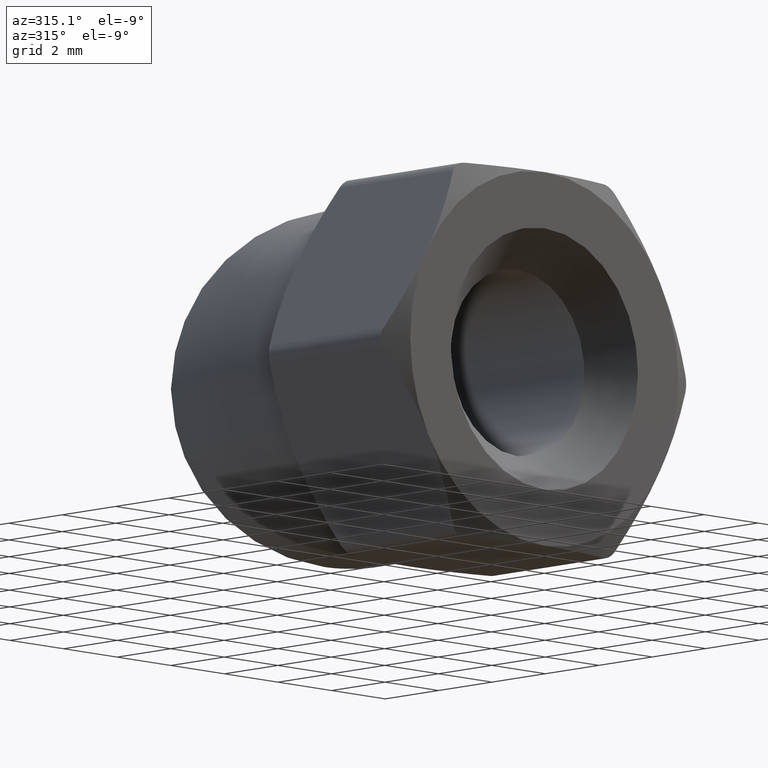
[diagram: clean part render]
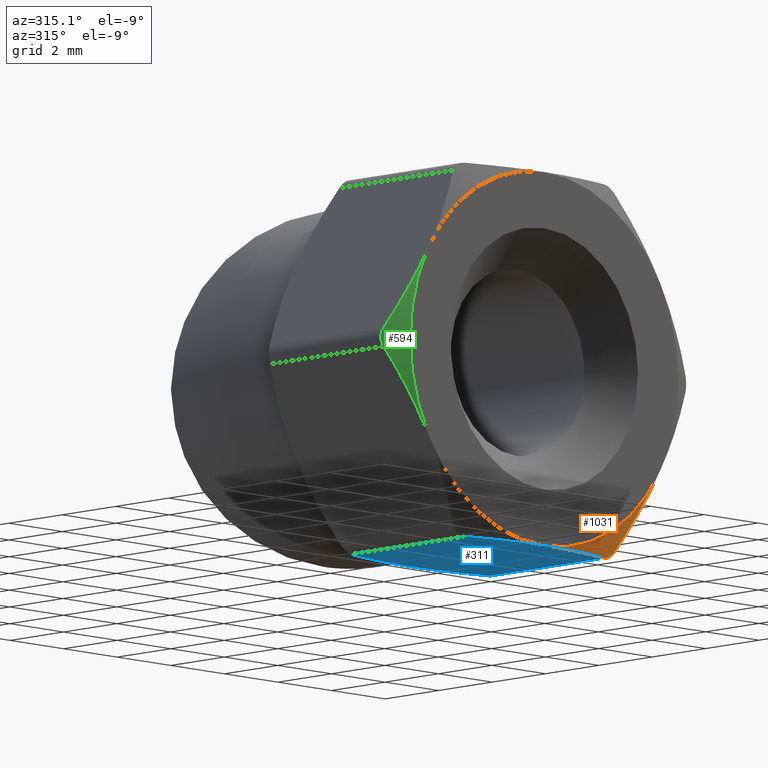
[diagram: same view with three faces highlighted in distinct colors, each labeled with its STEP entity id]
A machine part, auxiliary view with three faces highlighted in distinct colors.
Their STEP definitions:

[orange] entity #1031 — the highlighted conical surface has half-angle 60 deg.
#7 = CARTESIAN_POINT ( 'NONE',  ( 0.4379327334247484200, -9.910285482875310000E-016, -4.999999999999999100 ) ) ;
#11 = VERTEX_POINT ( 'NONE', #628 ) ;
#14 = EDGE_CURVE ( 'NONE', #129, #928, #1270, .T. ) ;
#47 = CARTESIAN_POINT ( 'NONE',  ( 3.888340324046019700, -4.111384739255980400E-015, -3.265197001633459300 ) ) ;
#73 = ORIENTED_EDGE ( 'NONE', *, *, #377, .T. ) ;
#129 = VERTEX_POINT ( 'NONE', #737 ) ;
#145 = ORIENTED_EDGE ( 'NONE', *, *, #14, .T. ) ;
#172 = CARTESIAN_POINT ( 'NONE',  ( 2.988064056856177200, 0.3893592352059666600, -4.824521237254662000 ) ) ;
#178 = CARTESIAN_POINT ( 'NONE',  ( 2.684097962339600400, 0.3893517915824357700, -4.999999999999999100 ) ) ;
#189 = EDGE_CURVE ( 'NONE', #11, #129, #958, .T. ) ;
#211 = EDGE_CURVE ( 'NONE', #544, #928, #212, .T. ) ;
#212 = CIRCLE ( 'NONE', #297, 5.000000000000000900 ) ;
#215 = CARTESIAN_POINT ( 'NONE',  ( 4.330127018922192800, 0.0000000000000000000, -2.500000000000002700 ) ) ;
#272 = CARTESIAN_POINT ( 'NONE',  ( 0.0000000000000000000, 0.0000000000000000000, 0.0000000000000000000 ) ) ;
#289 = CARTESIAN_POINT ( 'NONE',  ( 2.598076211353313800, 0.3664522033757202600, -4.999999999999999100 ) ) ;
#292 = CARTESIAN_POINT ( 'NONE',  ( 0.8816963457451865200, 0.03449202256963437900, -4.999999999999999100 ) ) ;
#297 = AXIS2_PLACEMENT_3D ( 'NONE', #272, #1269, #1265 ) ;
#316 = CARTESIAN_POINT ( 'NONE',  ( 0.0000000000000000000, 0.0000000000000000000, -5.000000000000000900 ) ) ;
#324 = CARTESIAN_POINT ( 'NONE',  ( 3.031088913245470400, 0.3664522033757524100, -4.750000000000108400 ) ) ;
#333 = CARTESIAN_POINT ( 'NONE',  ( 3.456602734154969900, 0.1399027280774072200, -4.012988442862091900 ) ) ;
#377 = EDGE_CURVE ( 'NONE', #544, #11, #923, .T. ) ;
#481 = DIRECTION ( 'NONE',  ( 0.0000000000000000000, 0.0000000000000000000, -1.000000000000000000 ) ) ;
#521 = AXIS2_PLACEMENT_3D ( 'NONE', #583, #777, #481 ) ;
#544 = VERTEX_POINT ( 'NONE', #316 ) ;
#552 = CARTESIAN_POINT ( 'NONE',  ( 2.598076211353313800, 0.3664522033757202600, -4.999999999999999100 ) ) ;
#578 = CARTESIAN_POINT ( 'NONE',  ( 1.750304367260592900, 0.1621372704867232700, -4.999999999999997300 ) ) ;
#583 = CARTESIAN_POINT ( 'NONE',  ( 0.0000000000000000000, 0.4465819873851976100, 0.0000000000000000000 ) ) ;
#628 = CARTESIAN_POINT ( 'NONE',  ( 2.598076211353313800, 0.3664522033757202600, -4.999999999999999100 ) ) ;
#629 = FACE_OUTER_BOUND ( 'NONE', #940, .T. ) ;
#655 = CONICAL_SURFACE ( 'NONE', #521, 5.773502691896257300, 1.047197551196603600 ) ;
#667 = CARTESIAN_POINT ( 'NONE',  ( 2.771465113497938200, 0.4018833234856941100, -4.977155422018797500 ) ) ;
#737 = CARTESIAN_POINT ( 'NONE',  ( 3.031088913245470400, 0.3664522033757524100, -4.750000000000108400 ) ) ;
#754 = CARTESIAN_POINT ( 'NONE',  ( 0.0000000000000000000, 0.0000000000000000000, -5.000000000000000900 ) ) ;
#777 = DIRECTION ( 'NONE',  ( -0.0000000000000000000, 1.000000000000000000, -0.0000000000000000000 ) ) ;
#778 = ORIENTED_EDGE ( 'NONE', *, *, #189, .T. ) ;
#923 = B_SPLINE_CURVE_WITH_KNOTS ( 'NONE', 3,
 ( #754, #7, #292, #578, #1088, #289 ),
 .UNSPECIFIED., .F., .F.,
 ( 4, 2, 4 ),
 ( 0.008070708573309194600, 0.009381581822669529700, 0.01069245507202986500 ),
 .UNSPECIFIED. ) ;
#928 = VERTEX_POINT ( 'NONE', #215 ) ;
#940 = EDGE_LOOP ( 'NONE', ( #73, #778, #145, #1036 ) ) ;
#958 = B_SPLINE_CURVE_WITH_KNOTS ( 'NONE', 3,
 ( #552, #178, #667, #1274, #172, #961 ),
 .UNSPECIFIED., .F., .F.,
 ( 4, 2, 4 ),
 ( 0.0000000000000000000, 0.0002635016616916906700, 0.0005270033233833813300 ),
 .UNSPECIFIED. ) ;
#961 = CARTESIAN_POINT ( 'NONE',  ( 3.031088913245470400, 0.3664522033757524100, -4.750000000000108400 ) ) ;
#1031 = ADVANCED_FACE ( 'NONE', ( #629 ), #655, .T. ) ;
#1036 = ORIENTED_EDGE ( 'NONE', *, *, #211, .F. ) ;
#1088 = CARTESIAN_POINT ( 'NONE',  ( 2.176897922532171000, 0.2543316145126675600, -4.999999999999999100 ) ) ;
#1148 = CARTESIAN_POINT ( 'NONE',  ( 4.330127018922192800, 0.0000000000000000000, -2.500000000000002700 ) ) ;
#1265 = DIRECTION ( 'NONE',  ( 0.0000000000000000000, 0.0000000000000000000, -1.000000000000000000 ) ) ;
#1269 = DIRECTION ( 'NONE',  ( 0.0000000000000000000, -1.000000000000000000, 0.0000000000000000000 ) ) ;
#1270 = B_SPLINE_CURVE_WITH_KNOTS ( 'NONE', 3,
 ( #324, #333, #47, #1148 ),
 .UNSPECIFIED., .F., .F.,
 ( 4, 4 ),
 ( 0.0002973740778412419000, 0.002921158011986710300 ),
 .UNSPECIFIED. ) ;
#1274 = CARTESIAN_POINT ( 'NONE',  ( 2.923932722703210400, 0.4019640539834248800, -4.889305204383051200 ) ) ;

[blue] entity #311 — the highlighted planar face has unit normal (0, -0, 1).
#7 = CARTESIAN_POINT ( 'NONE',  ( 0.4379327334247484200, -9.910285482875310000E-016, -4.999999999999999100 ) ) ;
#11 = VERTEX_POINT ( 'NONE', #628 ) ;
#61 = VECTOR ( 'NONE', #403, 1000.000000000000000 ) ;
#85 = EDGE_CURVE ( 'NONE', #954, #886, #728, .T. ) ;
#108 = ORIENTED_EDGE ( 'NONE', *, *, #534, .T. ) ;
#201 = CARTESIAN_POINT ( 'NONE',  ( -0.4380187123955633900, -9.012430558785755600E-016, -4.999999999999999100 ) ) ;
#236 = FACE_OUTER_BOUND ( 'NONE', #532, .T. ) ;
#279 = CARTESIAN_POINT ( 'NONE',  ( 2.598076211353312900, 4.633547796624279500, -4.999999999999999100 ) ) ;
#289 = CARTESIAN_POINT ( 'NONE',  ( 2.598076211353313800, 0.3664522033757202600, -4.999999999999999100 ) ) ;
#292 = CARTESIAN_POINT ( 'NONE',  ( 0.8816963457451865200, 0.03449202256963437900, -4.999999999999999100 ) ) ;
#311 = ADVANCED_FACE ( 'NONE', ( #236 ), #853, .F. ) ;
#316 = CARTESIAN_POINT ( 'NONE',  ( 0.0000000000000000000, 0.0000000000000000000, -5.000000000000000900 ) ) ;
#340 = EDGE_CURVE ( 'NONE', #954, #544, #1290, .T. ) ;
#360 = DIRECTION ( 'NONE',  ( 0.0000000000000000000, -0.0000000000000000000, 1.000000000000000000 ) ) ;
#375 = CARTESIAN_POINT ( 'NONE',  ( -1.739999404489200000, 0.1602084749622582300, -4.999999999999999100 ) ) ;
#377 = EDGE_CURVE ( 'NONE', #544, #11, #923, .T. ) ;
#393 = CARTESIAN_POINT ( 'NONE',  ( -2.598076211353432800, 4.633547796624261700, -4.999999999999999100 ) ) ;
#403 = DIRECTION ( 'NONE',  ( 0.0000000000000000000, -1.000000000000000000, 0.0000000000000000000 ) ) ;
#413 = VERTEX_POINT ( 'NONE', #1284 ) ;
#427 = CARTESIAN_POINT ( 'NONE',  ( 0.0000000000000000000, 5.000000000000000000, -5.000000000000000900 ) ) ;
#446 = ORIENTED_EDGE ( 'NONE', *, *, #802, .F. ) ;
#463 = CARTESIAN_POINT ( 'NONE',  ( 0.8816963457451860700, 4.965507977430364800, -4.999999999999997300 ) ) ;
#479 = CARTESIAN_POINT ( 'NONE',  ( -1.739999404489200900, 4.839791525037741200, -4.999999999999997300 ) ) ;
#500 = LINE ( 'NONE', #1010, #61 ) ;
#532 = EDGE_LOOP ( 'NONE', ( #872, #564, #446, #607, #108, #1095 ) ) ;
#534 = EDGE_CURVE ( 'NONE', #413, #11, #500, .T. ) ;
#544 = VERTEX_POINT ( 'NONE', #316 ) ;
#556 = CARTESIAN_POINT ( 'NONE',  ( -2.173161805207218100, 4.746662965895822600, -4.999999999999999100 ) ) ;
#564 = ORIENTED_EDGE ( 'NONE', *, *, #85, .T. ) ;
#578 = CARTESIAN_POINT ( 'NONE',  ( 1.750304367260592900, 0.1621372704867232700, -4.999999999999997300 ) ) ;
#591 = CARTESIAN_POINT ( 'NONE',  ( -2.598076211353432800, 0.3664522033757390300, -4.999999999999999100 ) ) ;
#607 = ORIENTED_EDGE ( 'NONE', *, *, #1247, .F. ) ;
#628 = CARTESIAN_POINT ( 'NONE',  ( 2.598076211353313800, 0.3664522033757202600, -4.999999999999999100 ) ) ;
#673 = CARTESIAN_POINT ( 'NONE',  ( -2.173161805207217200, 0.2533370341041785200, -4.999999999999999100 ) ) ;
#728 = LINE ( 'NONE', #735, #869 ) ;
#735 = CARTESIAN_POINT ( 'NONE',  ( -2.598076211353317300, 5.000000000000000000, -4.999999999999999100 ) ) ;
#754 = CARTESIAN_POINT ( 'NONE',  ( 0.0000000000000000000, 0.0000000000000000000, -5.000000000000000900 ) ) ;
#766 = CARTESIAN_POINT ( 'NONE',  ( 0.4379327334247479200, 5.000000000000000000, -4.999999999999999100 ) ) ;
#774 = CARTESIAN_POINT ( 'NONE',  ( 1.750304367260591800, 4.837862729513277700, -4.999999999999999100 ) ) ;
#786 = CARTESIAN_POINT ( 'NONE',  ( -2.598076211353432800, 0.3664522033757390300, -4.999999999999999100 ) ) ;
#791 = CARTESIAN_POINT ( 'NONE',  ( -0.8734965585025232800, 0.03371041895708262700, -4.999999999999997300 ) ) ;
#802 = EDGE_CURVE ( 'NONE', #1176, #886, #1175, .T. ) ;
#853 = PLANE ( 'NONE',  #1294 ) ;
#867 = CARTESIAN_POINT ( 'NONE',  ( 2.176897922532170500, 4.745668385487332100, -4.999999999999999100 ) ) ;
#869 = VECTOR ( 'NONE', #1139, 1000.000000000000000 ) ;
#872 = ORIENTED_EDGE ( 'NONE', *, *, #340, .F. ) ;
#876 = CARTESIAN_POINT ( 'NONE',  ( 0.0000000000000000000, 5.000000000000000000, -5.000000000000000900 ) ) ;
#881 = CARTESIAN_POINT ( 'NONE',  ( -0.4380187123955634500, 5.000000000000000000, -4.999999999999999100 ) ) ;
#886 = VERTEX_POINT ( 'NONE', #393 ) ;
#923 = B_SPLINE_CURVE_WITH_KNOTS ( 'NONE', 3,
 ( #754, #7, #292, #578, #1088, #289 ),
 .UNSPECIFIED., .F., .F.,
 ( 4, 2, 4 ),
 ( 0.008070708573309194600, 0.009381581822669529700, 0.01069245507202986500 ),
 .UNSPECIFIED. ) ;
#954 = VERTEX_POINT ( 'NONE', #591 ) ;
#981 = B_SPLINE_CURVE_WITH_KNOTS ( 'NONE', 3,
 ( #279, #867, #774, #463, #766, #1271 ),
 .UNSPECIFIED., .F., .F.,
 ( 4, 2, 4 ),
 ( 0.002415649517230676400, 0.003723171471378670000, 0.005030693425526663500 ),
 .UNSPECIFIED. ) ;
#1010 = CARTESIAN_POINT ( 'NONE',  ( 2.598076211353313800, 5.000000000000000000, -4.999999999999999100 ) ) ;
#1069 = CARTESIAN_POINT ( 'NONE',  ( 2.886751345948126900, 5.000000000000000000, -4.999999999999999100 ) ) ;
#1088 = CARTESIAN_POINT ( 'NONE',  ( 2.176897922532171000, 0.2543316145126675600, -4.999999999999999100 ) ) ;
#1090 = CARTESIAN_POINT ( 'NONE',  ( -0.8734965585025242800, 4.966289581042918400, -4.999999999999999100 ) ) ;
#1095 = ORIENTED_EDGE ( 'NONE', *, *, #377, .F. ) ;
#1139 = DIRECTION ( 'NONE',  ( -0.0000000000000000000, 1.000000000000000000, -0.0000000000000000000 ) ) ;
#1161 = DIRECTION ( 'NONE',  ( 1.000000000000000000, 0.0000000000000000000, -0.0000000000000000000 ) ) ;
#1175 = B_SPLINE_CURVE_WITH_KNOTS ( 'NONE', 3,
 ( #876, #881, #1090, #479, #556, #1267 ),
 .UNSPECIFIED., .F., .F.,
 ( 4, 2, 4 ),
 ( 0.005030693425526663500, 0.006338472084376895600, 0.007646250743227126800 ),
 .UNSPECIFIED. ) ;
#1176 = VERTEX_POINT ( 'NONE', #427 ) ;
#1247 = EDGE_CURVE ( 'NONE', #413, #1176, #981, .T. ) ;
#1267 = CARTESIAN_POINT ( 'NONE',  ( -2.598076211353432800, 4.633547796624261700, -4.999999999999999100 ) ) ;
#1271 = CARTESIAN_POINT ( 'NONE',  ( 0.0000000000000000000, 5.000000000000000000, -5.000000000000000900 ) ) ;
#1284 = CARTESIAN_POINT ( 'NONE',  ( 2.598076211353312900, 4.633547796624279500, -4.999999999999999100 ) ) ;
#1290 = B_SPLINE_CURVE_WITH_KNOTS ( 'NONE', 3,
 ( #786, #673, #375, #791, #201, #1291 ),
 .UNSPECIFIED., .F., .F.,
 ( 4, 2, 4 ),
 ( 0.005448447349270024700, 0.006759577961289609700, 0.008070708573309194600 ),
 .UNSPECIFIED. ) ;
#1291 = CARTESIAN_POINT ( 'NONE',  ( 0.0000000000000000000, 0.0000000000000000000, -5.000000000000000900 ) ) ;
#1294 = AXIS2_PLACEMENT_3D ( 'NONE', #1069, #360, #1161 ) ;

[green] entity #594 — the highlighted conical surface has half-angle 60 deg.
#74 = CARTESIAN_POINT ( 'NONE',  ( -4.330127018922194500, 0.0000000000000000000, 2.500000000000000000 ) ) ;
#84 = CARTESIAN_POINT ( 'NONE',  ( -5.629165124598850800, 0.3664522033757208800, 0.2499999999999990300 ) ) ;
#116 = CARTESIAN_POINT ( 'NONE',  ( -5.629165124598850800, 0.3664522033757208800, 0.2499999999999990300 ) ) ;
#200 = CIRCLE ( 'NONE', #993, 5.000000000000000900 ) ;
#209 = CARTESIAN_POINT ( 'NONE',  ( -5.696075590800707500, 0.4018833234856946100, 0.08841851701785871700 ) ) ;
#266 = CARTESIAN_POINT ( 'NONE',  ( -4.770156486568006400, 0.03439641625941002000, 1.737846605209964600 ) ) ;
#302 = B_SPLINE_CURVE_WITH_KNOTS ( 'NONE', 3,
 ( #1102, #486, #915, #492 ),
 .UNSPECIFIED., .F., .F.,
 ( 4, 4 ),
 ( 0.0002973740778412421200, 0.002921158011986709900 ),
 .UNSPECIFIED. ) ;
#310 = CARTESIAN_POINT ( 'NONE',  ( -5.696228875202796100, 0.4019640539834253800, -0.08754741462605814000 ) ) ;
#312 = EDGE_CURVE ( 'NONE', #424, #943, #528, .T. ) ;
#345 = VERTEX_POINT ( 'NONE', #371 ) ;
#371 = CARTESIAN_POINT ( 'NONE',  ( -4.330127018922195400, 0.0000000000000000000, -2.500000000000000000 ) ) ;
#420 = DIRECTION ( 'NONE',  ( 0.0000000000000000000, 1.000000000000000000, 0.0000000000000000000 ) ) ;
#424 = VERTEX_POINT ( 'NONE', #685 ) ;
#480 = CONICAL_SURFACE ( 'NONE', #1145, 5.773502691896257300, 1.047197551196603600 ) ;
#486 = CARTESIAN_POINT ( 'NONE',  ( -5.203651303689413900, 0.1399027280774077500, -0.9870115571379083400 ) ) ;
#492 = CARTESIAN_POINT ( 'NONE',  ( -4.330127018922195400, 0.0000000000000000000, -2.500000000000000000 ) ) ;
#496 = CARTESIAN_POINT ( 'NONE',  ( -5.672176000091992500, 0.3893517915824369300, 0.1755029783678558600 ) ) ;
#528 = B_SPLINE_CURVE_WITH_KNOTS ( 'NONE', 3,
 ( #74, #974, #266, #1059, #557, #84 ),
 .UNSPECIFIED., .F., .F.,
 ( 4, 2, 4 ),
 ( 0.002921158011986714200, 0.004227809343379592000, 0.005534460674772470300 ),
 .UNSPECIFIED. ) ;
#548 = EDGE_CURVE ( 'NONE', #829, #345, #302, .T. ) ;
#557 = CARTESIAN_POINT ( 'NONE',  ( -5.416897631432969500, 0.2534380382968114400, 0.6176580829585843800 ) ) ;
#594 = ADVANCED_FACE ( 'NONE', ( #1086 ), #480, .T. ) ;
#595 = DIRECTION ( 'NONE',  ( -0.0000000000000000000, 1.000000000000000000, -0.0000000000000000000 ) ) ;
#600 = DIRECTION ( 'NONE',  ( 0.0000000000000000000, 0.0000000000000000000, 1.000000000000000000 ) ) ;
#626 = ORIENTED_EDGE ( 'NONE', *, *, #548, .T. ) ;
#659 = B_SPLINE_CURVE_WITH_KNOTS ( 'NONE', 3,
 ( #116, #496, #209, #310, #996, #1001 ),
 .UNSPECIFIED., .F., .F.,
 ( 4, 2, 4 ),
 ( 5.421010862427522200E-020, 0.0002635016616916907200, 0.0005270033233833813300 ),
 .UNSPECIFIED. ) ;
#685 = CARTESIAN_POINT ( 'NONE',  ( -4.330127018922194500, 0.0000000000000000000, 2.500000000000000000 ) ) ;
#790 = CARTESIAN_POINT ( 'NONE',  ( -5.629165124598912900, 0.3664522033757529100, -0.2499999999998922300 ) ) ;
#795 = EDGE_LOOP ( 'NONE', ( #1082, #1254, #626, #1173 ) ) ;
#829 = VERTEX_POINT ( 'NONE', #790 ) ;
#866 = EDGE_CURVE ( 'NONE', #943, #829, #659, .T. ) ;
#915 = CARTESIAN_POINT ( 'NONE',  ( -4.771913713798364900, -3.044180851795661500E-015, -1.734802998366541200 ) ) ;
#943 = VERTEX_POINT ( 'NONE', #1138 ) ;
#974 = CARTESIAN_POINT ( 'NONE',  ( -4.550137960196445300, -4.261422757636383400E-015, 2.118929871491940000 ) ) ;
#993 = AXIS2_PLACEMENT_3D ( 'NONE', #1220, #420, #600 ) ;
#996 = CARTESIAN_POINT ( 'NONE',  ( -5.672189980988156900, 0.3893592352059677700, -0.1754787627453112400 ) ) ;
#1001 = CARTESIAN_POINT ( 'NONE',  ( -5.629165124598912900, 0.3664522033757529100, -0.2499999999998922300 ) ) ;
#1059 = CARTESIAN_POINT ( 'NONE',  ( -5.202901597395190900, 0.1612945239866042900, 0.9883100865302558700 ) ) ;
#1082 = ORIENTED_EDGE ( 'NONE', *, *, #312, .T. ) ;
#1086 = FACE_OUTER_BOUND ( 'NONE', #795, .T. ) ;
#1102 = CARTESIAN_POINT ( 'NONE',  ( -5.629165124598912900, 0.3664522033757529100, -0.2499999999998922300 ) ) ;
#1106 = EDGE_CURVE ( 'NONE', #345, #424, #200, .T. ) ;
#1110 = CARTESIAN_POINT ( 'NONE',  ( 0.0000000000000000000, 0.4465819873851976100, 0.0000000000000000000 ) ) ;
#1138 = CARTESIAN_POINT ( 'NONE',  ( -5.629165124598850800, 0.3664522033757208800, 0.2499999999999990300 ) ) ;
#1145 = AXIS2_PLACEMENT_3D ( 'NONE', #1110, #595, #1199 ) ;
#1173 = ORIENTED_EDGE ( 'NONE', *, *, #1106, .T. ) ;
#1199 = DIRECTION ( 'NONE',  ( 0.0000000000000000000, 0.0000000000000000000, -1.000000000000000000 ) ) ;
#1220 = CARTESIAN_POINT ( 'NONE',  ( 0.0000000000000000000, 0.0000000000000000000, 0.0000000000000000000 ) ) ;
#1254 = ORIENTED_EDGE ( 'NONE', *, *, #866, .T. ) ;